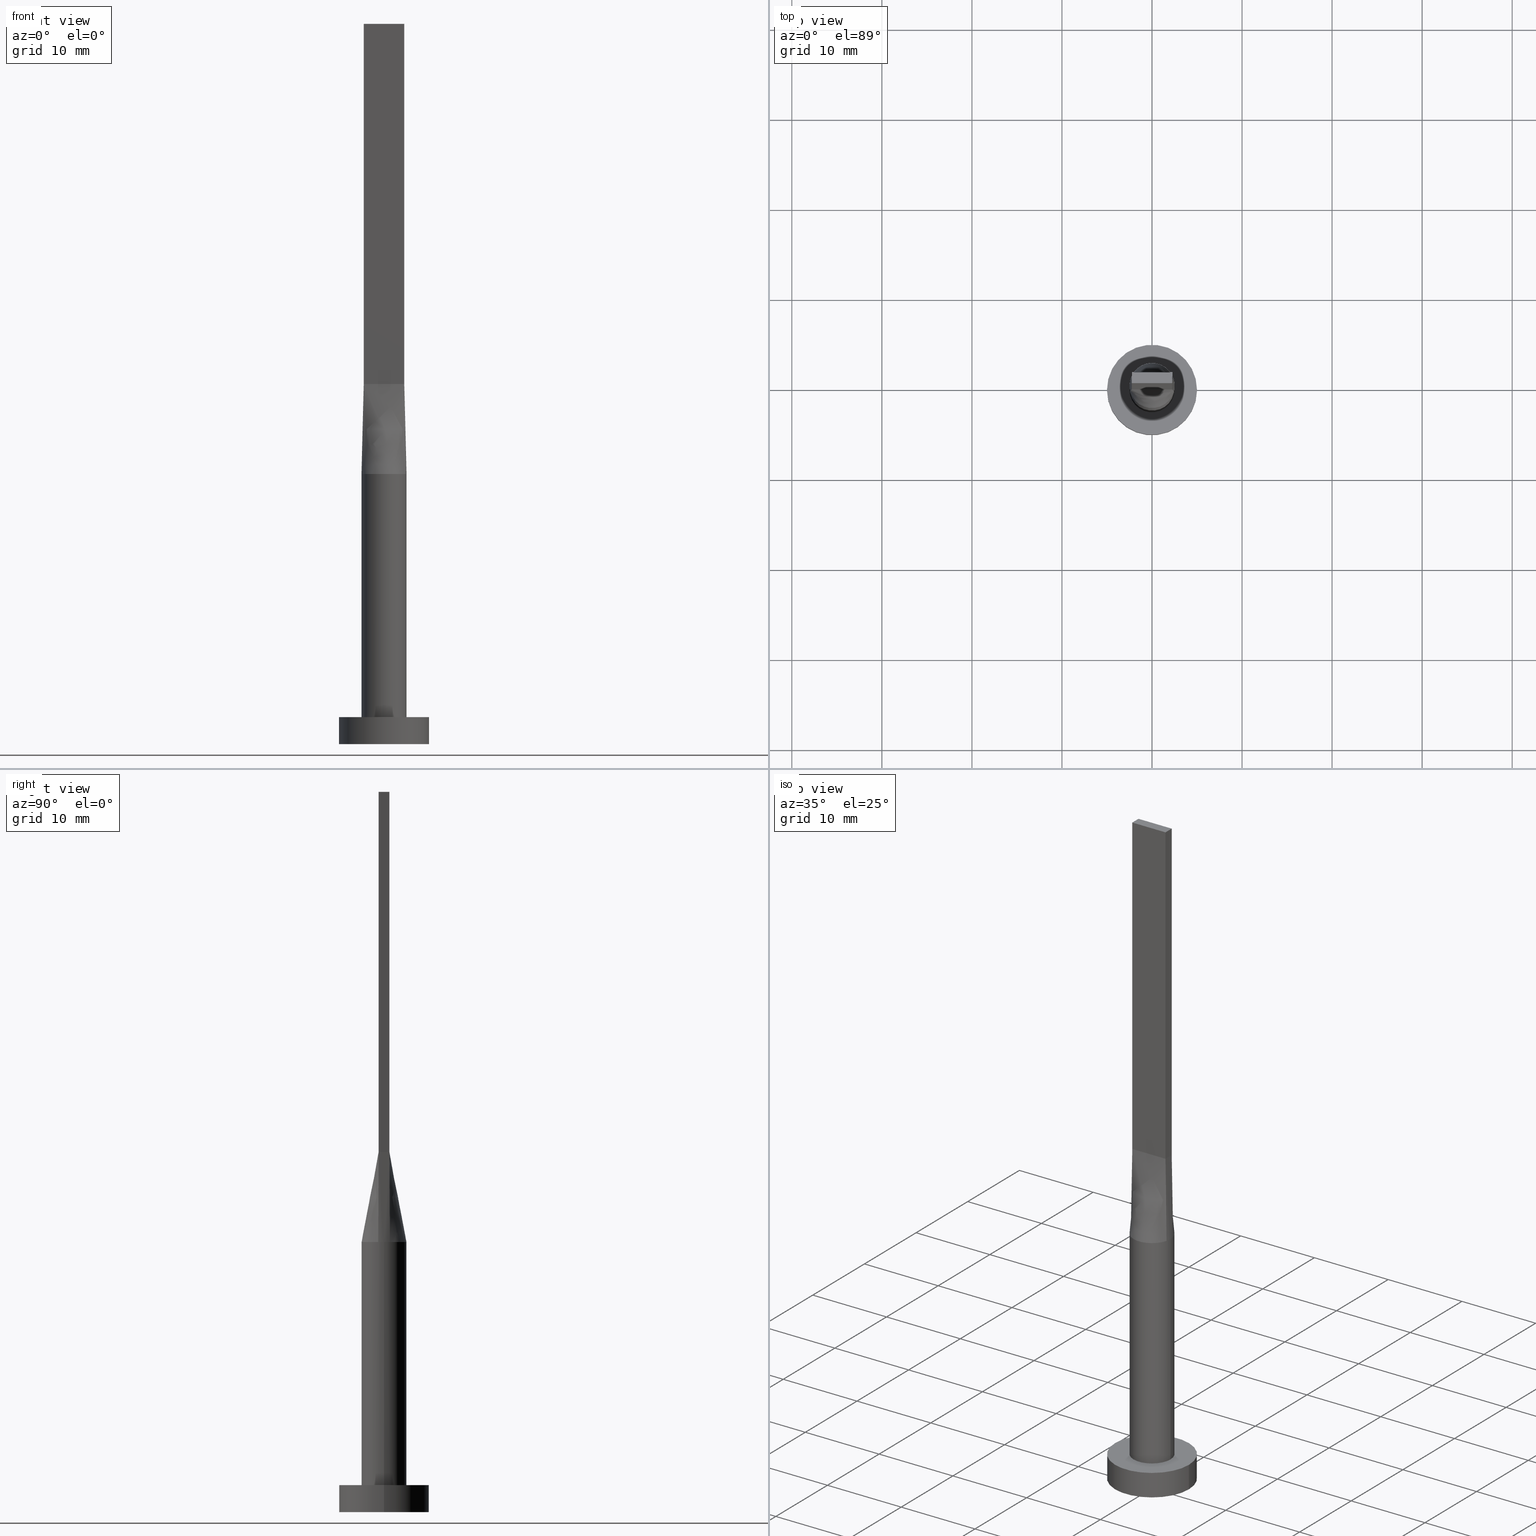
[diagram: canonical four-view strip — front | top / right | iso, engineering-drawing reading convention]
A machine part, canonical four-view strip (front | top / right | iso — engineering-drawing reading convention). The complete STEP part file that produces these views, byte-faithful:
ISO-10303-21;
HEADER;
FILE_DESCRIPTION (( 'STEP AP203' ),
    '1' );
FILE_NAME ('47bc.STEP',
    '2023-02-13T12:33:36',
    ( '' ),
    ( '' ),
    'SwSTEP 2.0',
    'SolidWorks 2019',
    '' );
FILE_SCHEMA (( 'CONFIG_CONTROL_DESIGN' ));
ENDSEC;

DATA;
#1 = CARTESIAN_POINT ( 'NONE',  ( 2.249999999999999556, 0.6000000000000001998, 80.00000000000000000 ) ) ;
#2 = CIRCLE ( 'NONE', #316, 5.000000000000000000 ) ;
#3 = PLANE ( 'NONE',  #278 ) ;
#4 = CARTESIAN_POINT ( 'NONE',  ( 2.249999999999999556, 0.6000000000000001998, 80.00000000000000000 ) ) ;
#5 = CARTESIAN_POINT ( 'NONE',  ( -2.249999999999999556, 0.6000000000000001998, 80.00000000000000000 ) ) ;
#6 = ORIENTED_EDGE ( 'NONE', *, *, #446, .F. ) ;
#7 =( NAMED_UNIT ( * ) PLANE_ANGLE_UNIT ( ) SI_UNIT ( $, .RADIAN. ) );
#8 = CARTESIAN_POINT ( 'NONE',  ( 2.415587349003115669, 0.6441566264008308229, 30.00000000000000000 ) ) ;
#9 = CARTESIAN_POINT ( 'NONE',  ( 2.250000000000000000, -0.5999999999999997558, 40.00000000000000000 ) ) ;
#10 = ORIENTED_EDGE ( 'NONE', *, *, #391, .T. ) ;
#11 = CARTESIAN_POINT ( 'NONE',  ( -1.312500000000006439, 0.6000000000000000888, 39.99999999999999289 ) ) ;
#12 = CARTESIAN_POINT ( 'NONE',  ( -2.250000000000000000, -0.5999999999999994227, 40.00000000000000000 ) ) ;
#13 = APPROVAL_ROLE ( '' ) ;
#14 = CARTESIAN_POINT ( 'NONE',  ( 0.6394215159088044720, -2.436483607037786214, 30.00000000000000711 ) ) ;
#15 = EDGE_CURVE ( 'NONE', #521, #509, #29, .T. ) ;
#16 = CARTESIAN_POINT ( 'NONE',  ( -5.000000000000000000, 0.000000000000000000, 3.000000000000000000 ) ) ;
#17 = DATE_AND_TIME ( #420, #285 ) ;
#18 = CARTESIAN_POINT ( 'NONE',  ( -2.249999999999999556, 0.3999999999999996891, 39.99999999999999289 ) ) ;
#19 = PRODUCT_RELATED_PRODUCT_CATEGORY ( 'detail', '', ( #579 ) ) ;
#20 = VECTOR ( 'NONE', #149, 1000.000000000000000 ) ;
#21 = LINE ( 'NONE', #458, #503 ) ;
#22 = ORIENTED_EDGE ( 'NONE', *, *, #57, .F. ) ;
#23 = CC_DESIGN_PERSON_AND_ORGANIZATION_ASSIGNMENT ( #181, #364, ( #579 ) ) ;
#24 = CIRCLE ( 'NONE', #231, 2.500000000000000000 ) ;
#25 = PLANE ( 'NONE',  #373 ) ;
#26 = EDGE_LOOP ( 'NONE', ( #10, #462, #154, #565 ) ) ;
#27 = DIRECTION ( 'NONE',  ( -3.614007241618348278E-16, 1.000000000000000000, -0.000000000000000000 ) ) ;
#28 = ORIENTED_EDGE ( 'NONE', *, *, #156, .F. ) ;
#29 = CIRCLE ( 'NONE', #512, 2.500000000000000000 ) ;
#30 = CARTESIAN_POINT ( 'NONE',  ( 0.000000000000000000, 0.000000000000000000, 3.000000000000000000 ) ) ;
#31 = EDGE_LOOP ( 'NONE', ( #289, #472, #326, #514 ) ) ;
#32 = CARTESIAN_POINT ( 'NONE',  ( 5.000000000000000000, 6.123233995736766282E-16, 3.000000000000000000 ) ) ;
#33 = EDGE_CURVE ( 'NONE', #465, #511, #89, .T. ) ;
#34 = EDGE_LOOP ( 'NONE', ( #130, #211, #286, #435 ) ) ;
#35 = CARTESIAN_POINT ( 'NONE',  ( -2.249999999999999556, 0.1999999999999995115, 39.99999999999999289 ) ) ;
#36 = ORIENTED_EDGE ( 'NONE', *, *, #198, .F. ) ;
#37 = CARTESIAN_POINT ( 'NONE',  ( -2.250000000000000000, -0.5999999999999994227, 80.00000000000000000 ) ) ;
#38 = ORIENTED_EDGE ( 'NONE', *, *, #39, .F. ) ;
#39 = EDGE_CURVE ( 'NONE', #128, #298, #567, .T. ) ;
#40 = DIRECTION ( 'NONE',  ( 0.000000000000000000, 0.000000000000000000, 1.000000000000000000 ) ) ;
#41 = ORIENTED_EDGE ( 'NONE', *, *, #198, .T. ) ;
#42 = AXIS2_PLACEMENT_3D ( 'NONE', #37, #118, #78 ) ;
#43 = CARTESIAN_POINT ( 'NONE',  ( -2.249999999999999556, 0.6000000000000001998, 40.00000000000000000 ) ) ;
#44 = CARTESIAN_POINT ( 'NONE',  ( -0.1875000000000003886, -0.5999999999999995337, 40.00000000000000000 ) ) ;
#45 = B_SPLINE_SURFACE_WITH_KNOTS ( 'NONE', 3, 1, ( 
 ( #8, #493 ),
 ( #581, #577 ),
 ( #319, #315 ),
 ( #188, #530 ),
 ( #98, #398 ),
 ( #498, #312 ),
 ( #362, #275 ),
 ( #90, #490 ),
 ( #268, #447 ),
 ( #453, #266 ),
 ( #175, #226 ),
 ( #53, #233 ),
 ( #401, #411 ),
 ( #541, #11 ),
 ( #351, #440 ),
 ( #182, #271 ),
 ( #443, #535 ),
 ( #354, #43 ) ),
 .UNSPECIFIED., .F., .F., .F.,
 ( 4, 2, 2, 2, 2, 2, 2, 2, 4 ),
 ( 2, 2 ),
 ( 0.000000000000000000, 0.1249999999999999445, 0.2499999999999998890, 0.3749999999999998335, 0.4999999999999997780, 0.6249999999999997780, 0.7499999999999997780, 0.8749999999999997780, 1.000000000000000000 ),
 ( 0.000000000000000000, 1.000000000000000000 ),
 .UNSPECIFIED. ) ;
#46 = CARTESIAN_POINT ( 'NONE',  ( -0.3750000000000003886, -0.5999999999999994227, 39.99999999999999289 ) ) ;
#47 = VECTOR ( 'NONE', #371, 1000.000000000000000 ) ;
#48 = PERSON_AND_ORGANIZATION ( #261, #250 ) ;
#49 = CARTESIAN_POINT ( 'NONE',  ( -2.499999999999999556, -1.638601646481158325E-16, 29.99999999999999289 ) ) ;
#50 = FACE_OUTER_BOUND ( 'NONE', #374, .T. ) ;
#51 = ADVANCED_FACE ( 'NONE', ( #302 ), #405, .T. ) ;
#52 = CARTESIAN_POINT ( 'NONE',  ( 2.250000000000000000, -0.5999999999999997558, 80.00000000000000000 ) ) ;
#53 = CARTESIAN_POINT ( 'NONE',  ( -1.212939335911090044, 2.207734225347456114, 30.00000000000000000 ) ) ;
#54 = CARTESIAN_POINT ( 'NONE',  ( 2.062500000000000000, -0.5999999999999997558, 39.99999999999999289 ) ) ;
#55 = DIRECTION ( 'NONE',  ( 0.000000000000000000, 0.000000000000000000, 1.000000000000000000 ) ) ;
#56 = PERSON_AND_ORGANIZATION ( #261, #250 ) ;
#57 = EDGE_CURVE ( 'NONE', #419, #396, #140, .T. ) ;
#58 = DIRECTION ( 'NONE',  ( 0.000000000000000000, 0.000000000000000000, 1.000000000000000000 ) ) ;
#59 = VERTEX_POINT ( 'NONE', #355 ) ;
#60 = APPLICATION_CONTEXT ( 'configuration controlled 3d designs of mechanical parts and assemblies' ) ;
#61 = APPROVAL_STATUS ( 'not_yet_approved' ) ;
#62 = CC_DESIGN_PERSON_AND_ORGANIZATION_ASSIGNMENT ( #287, #244, ( #193 ) ) ;
#63 = CARTESIAN_POINT ( 'NONE',  ( 0.000000000000000000, 0.000000000000000000, 0.000000000000000000 ) ) ;
#64 = DATE_TIME_ROLE ( 'creation_date' ) ;
#65 = LINE ( 'NONE', #290, #114 ) ;
#66 = EDGE_CURVE ( 'NONE', #465, #330, #144, .T. ) ;
#67 = ORIENTED_EDGE ( 'NONE', *, *, #258, .T. ) ;
#68 = DATE_AND_TIME ( #379, #249 ) ;
#69 = LINE ( 'NONE', #552, #439 ) ;
#70 = ORIENTED_EDGE ( 'NONE', *, *, #507, .F. ) ;
#71 = VECTOR ( 'NONE', #255, 1000.000000000000000 ) ;
#72 = CARTESIAN_POINT ( 'NONE',  ( -5.000000000000000000, 0.000000000000000000, 0.000000000000000000 ) ) ;
#73 = APPROVAL_PERSON_ORGANIZATION ( #413, #291, #13 ) ;
#74 = ORIENTED_EDGE ( 'NONE', *, *, #425, .F. ) ;
#75 = CARTESIAN_POINT ( 'NONE',  ( -2.499999999999999556, 0.2184061234416766750, 29.99999999999998934 ) ) ;
#76 = CARTESIAN_POINT ( 'NONE',  ( -2.250000000000000000, -0.5999999999999994227, 40.00000000000000000 ) ) ;
#77 = EDGE_CURVE ( 'NONE', #59, #298, #451, .T. ) ;
#78 = DIRECTION ( 'NONE',  ( -1.000000000000000000, 7.228014483236697048E-17, 0.000000000000000000 ) ) ;
#79 = ORIENTED_EDGE ( 'NONE', *, *, #180, .T. ) ;
#80 = CC_DESIGN_DATE_AND_TIME_ASSIGNMENT ( #68, #515, ( #193 ) ) ;
#81 = PLANE ( 'NONE',  #240 ) ;
#82 = APPROVAL_PERSON_ORGANIZATION ( #56, #150, #551 ) ;
#83 = CARTESIAN_POINT ( 'NONE',  ( -2.283437435282020811, -1.045786430836910474, 30.00000000000000000 ) ) ;
#84 = APPROVAL_DATE_TIME ( #17, #150 ) ;
#85 = DIRECTION ( 'NONE',  ( 1.000000000000000000, 0.000000000000000000, 0.000000000000000000 ) ) ;
#86 = EDGE_LOOP ( 'NONE', ( #441, #119 ) ) ;
#87 = ADVANCED_FACE ( 'NONE', ( #50 ), #121, .T. ) ;
#88 = CARTESIAN_POINT ( 'NONE',  ( -1.466504377161500727, 2.043814966248090226, 30.00000000000000000 ) ) ;
#89 = LINE ( 'NONE', #262, #272 ) ;
#90 = CARTESIAN_POINT ( 'NONE',  ( 0.6394215159088050271, 2.436483607037784882, 29.99999999999998579 ) ) ;
#91 = CARTESIAN_POINT ( 'NONE',  ( 0.9374999999999997780, -0.5999999999999996447, 39.99999999999999289 ) ) ;
#92 = DIRECTION ( 'NONE',  ( -3.614007241618348278E-16, 1.000000000000000000, 0.000000000000000000 ) ) ;
#93 = CARTESIAN_POINT ( 'NONE',  ( 2.470912383581261640, 0.4366877467327808238, 30.00000000000000355 ) ) ;
#94 = CALENDAR_DATE ( 2023, 13, 2 ) ;
#95 = DIRECTION ( 'NONE',  ( 0.000000000000000000, 0.000000000000000000, 1.000000000000000000 ) ) ;
#96 = CARTESIAN_POINT ( 'NONE',  ( 1.312499999999999778, -0.5999999999999997558, 39.99999999999999289 ) ) ;
#97 = APPROVAL_DATE_TIME ( #449, #291 ) ;
#98 = CARTESIAN_POINT ( 'NONE',  ( 1.880930080310023289, 1.670304384679167642, 29.99999999999999645 ) ) ;
#99 = CARTESIAN_POINT ( 'NONE',  ( 2.499999999999999112, 0.2184061234416761477, 29.99999999999998934 ) ) ;
#100 = VECTOR ( 'NONE', #141, 1000.000000000000114 ) ;
#101 = AXIS2_PLACEMENT_3D ( 'NONE', #288, #461, #427 ) ;
#102 = CARTESIAN_POINT ( 'NONE',  ( 2.500000000000000000, 3.061616997868383141E-16, 3.000000000000000000 ) ) ;
#103 = CARTESIAN_POINT ( 'NONE',  ( 2.249999999999999556, 0.4000000000000002998, 39.99999999999999289 ) ) ;
#104 = EDGE_CURVE ( 'NONE', #396, #237, #2, .T. ) ;
#105 = CARTESIAN_POINT ( 'NONE',  ( 2.250000000000000000, -0.5999999999999997558, 40.00000000000000000 ) ) ;
#106 = COORDINATED_UNIVERSAL_TIME_OFFSET ( 1, 0, .AHEAD. ) ;
#107 = DIRECTION ( 'NONE',  ( 0.000000000000000000, 0.000000000000000000, 1.000000000000000000 ) ) ;
#108 = ORIENTED_EDGE ( 'NONE', *, *, #104, .F. ) ;
#109 = CARTESIAN_POINT ( 'NONE',  ( -2.249999999999999556, 0.6000000000000001998, 40.00000000000000000 ) ) ;
#110 = ORIENTED_EDGE ( 'NONE', *, *, #162, .T. ) ;
#111 = CALENDAR_DATE ( 2023, 13, 2 ) ;
#112 = DIRECTION ( 'NONE',  ( 1.000000000000000000, 0.000000000000000000, -0.000000000000000000 ) ) ;
#113 = EDGE_LOOP ( 'NONE', ( #555, #547, #304, #481 ) ) ;
#114 = VECTOR ( 'NONE', #153, 1000.000000000000114 ) ;
#115 = CARTESIAN_POINT ( 'NONE',  ( -2.250000000000000000, -0.5999999999999994227, 80.00000000000000000 ) ) ;
#116 = EDGE_LOOP ( 'NONE', ( #252, #216, #74, #28, #483 ) ) ;
#117 = APPROVAL_PERSON_ORGANIZATION ( #556, #416, #332 ) ;
#118 = DIRECTION ( 'NONE',  ( 7.228014483236697048E-17, 1.000000000000000000, -0.000000000000000000 ) ) ;
#119 = ORIENTED_EDGE ( 'NONE', *, *, #242, .T. ) ;
#120 = EDGE_CURVE ( 'NONE', #160, #469, #415, .T. ) ;
#121 = B_SPLINE_SURFACE_WITH_KNOTS ( 'NONE', 3, 1, ( 
 ( #137, #186 ),
 ( #179, #317 ),
 ( #536, #495 ),
 ( #99, #500 ),
 ( #93, #103 ),
 ( #279, #456 ) ),
 .UNSPECIFIED., .F., .F., .F.,
 ( 4, 2, 4 ),
 ( 2, 2 ),
 ( 0.000000000000000000, 0.5000000000000000000, 1.000000000000000000 ),
 ( 0.000000000000000000, 1.000000000000000000 ),
 .UNSPECIFIED. ) ;
#122 = CARTESIAN_POINT ( 'NONE',  ( -0.6394215159088052491, 2.436483607037785326, 30.00000000000000355 ) ) ;
#123 = VERTEX_POINT ( 'NONE', #133 ) ;
#124 = CARTESIAN_POINT ( 'NONE',  ( 2.249999999999999556, 0.6000000000000001998, 40.00000000000000000 ) ) ;
#125 = ORIENTED_EDGE ( 'NONE', *, *, #169, .T. ) ;
#126 = EDGE_CURVE ( 'NONE', #511, #254, #267, .T. ) ;
#127 = PLANE ( 'NONE',  #42 ) ;
#128 = VERTEX_POINT ( 'NONE', #538 ) ;
#129 = CARTESIAN_POINT ( 'NONE',  ( -2.249999999999999556, 0.6000000000000001998, 40.00000000000000000 ) ) ;
#130 = ORIENTED_EDGE ( 'NONE', *, *, #156, .T. ) ;
#131 = FACE_OUTER_BOUND ( 'NONE', #340, .T. ) ;
#132 = MANIFOLD_SOLID_BREP ( 'P�idat vysunut�m5', #533 ) ;
#133 = CARTESIAN_POINT ( 'NONE',  ( 2.499999999999999556, 1.077931475469669239E-17, 29.99999999999999289 ) ) ;
#134 = CARTESIAN_POINT ( 'NONE',  ( 2.250000000000000000, -0.5999999999999997558, 80.00000000000000000 ) ) ;
#135 = CARTESIAN_POINT ( 'NONE',  ( 0.000000000000000000, 0.000000000000000000, 0.000000000000000000 ) ) ;
#136 = ORIENTED_EDGE ( 'NONE', *, *, #403, .F. ) ;
#137 = CARTESIAN_POINT ( 'NONE',  ( 2.415587349003115669, -0.6441566264008309339, 30.00000000000000000 ) ) ;
#138 = APPLICATION_PROTOCOL_DEFINITION ( 'international standard', 'config_control_design', 1994, #342 ) ;
#139 = FACE_OUTER_BOUND ( 'NONE', #404, .T. ) ;
#140 = LINE ( 'NONE', #408, #570 ) ;
#141 = DIRECTION ( 'NONE',  ( -0.01655630387018622654, -0.004415014365382924529, 0.9998531874481929593 ) ) ;
#142 = CARTESIAN_POINT ( 'NONE',  ( 0.000000000000000000, 0.000000000000000000, 0.000000000000000000 ) ) ;
#143 = EDGE_CURVE ( 'NONE', #511, #160, #227, .T. ) ;
#144 = LINE ( 'NONE', #1, #299 ) ;
#145 = AXIS2_PLACEMENT_3D ( 'NONE', #322, #459, #331 ) ;
#146 = VERTEX_POINT ( 'NONE', #247 ) ;
#147 = DIRECTION ( 'NONE',  ( 3.614007241618348278E-16, -1.000000000000000000, 0.000000000000000000 ) ) ;
#148 = VECTOR ( 'NONE', #323, 1000.000000000000000 ) ;
#149 = DIRECTION ( 'NONE',  ( -0.000000000000000000, -0.000000000000000000, -1.000000000000000000 ) ) ;
#150 = APPROVAL ( #238, 'NEUR�EN�' ) ;
#151 = CARTESIAN_POINT ( 'NONE',  ( 0.000000000000000000, 0.000000000000000000, 80.00000000000000000 ) ) ;
#152 = ORIENTED_EDGE ( 'NONE', *, *, #39, .T. ) ;
#153 = DIRECTION ( 'NONE',  ( 0.01655630387018622654, -0.004415014365382947080, 0.9998531874481929593 ) ) ;
#154 = ORIENTED_EDGE ( 'NONE', *, *, #553, .F. ) ;
#155 = COORDINATED_UNIVERSAL_TIME_OFFSET ( 1, 0, .AHEAD. ) ;
#156 = EDGE_CURVE ( 'NONE', #254, #59, #21, .T. ) ;
#157 = CARTESIAN_POINT ( 'NONE',  ( 0.000000000000000000, 0.000000000000000000, 30.00000000000000000 ) ) ;
#158 = DESIGN_CONTEXT ( 'detailed design', #60, 'design' ) ;
#159 = CARTESIAN_POINT ( 'NONE',  ( 0.000000000000000000, 0.000000000000000000, 3.000000000000000000 ) ) ;
#160 = VERTEX_POINT ( 'NONE', #115 ) ;
#161 = DIRECTION ( 'NONE',  ( -1.000000000000000000, 0.000000000000000000, 0.000000000000000000 ) ) ;
#162 = EDGE_CURVE ( 'NONE', #146, #237, #292, .T. ) ;
#163 = VERTEX_POINT ( 'NONE', #195 ) ;
#164 = CIRCLE ( 'NONE', #452, 2.500000000000000000 ) ;
#165 = FACE_OUTER_BOUND ( 'NONE', #86, .T. ) ;
#166 = ORIENTED_EDGE ( 'NONE', *, *, #347, .F. ) ;
#167 = CARTESIAN_POINT ( 'NONE',  ( -2.249999999999999556, -0.2000000000000003719, 39.99999999999999289 ) ) ;
#168 = CARTESIAN_POINT ( 'NONE',  ( -2.415587349003116113, -0.6441566264008301568, 30.00000000000000000 ) ) ;
#169 = EDGE_CURVE ( 'NONE', #246, #254, #65, .T. ) ;
#170 = CARTESIAN_POINT ( 'NONE',  ( 2.283437435282019923, 1.045786430836911585, 30.00000000000000711 ) ) ;
#171 = DIRECTION ( 'NONE',  ( -1.000000000000000000, 0.000000000000000000, 0.000000000000000000 ) ) ;
#172 = AXIS2_PLACEMENT_3D ( 'NONE', #30, #210, #305 ) ;
#173 = CARTESIAN_POINT ( 'NONE',  ( 2.042400361660745567, 1.461628045180436430, 29.99999999999999289 ) ) ;
#174 = ORIENTED_EDGE ( 'NONE', *, *, #162, .F. ) ;
#175 = CARTESIAN_POINT ( 'NONE',  ( -0.6394215159088052491, 2.436483607037785326, 30.00000000000000355 ) ) ;
#176 = CARTESIAN_POINT ( 'NONE',  ( -2.363720129086103405, -0.8386587010896268124, 30.00000000000000355 ) ) ;
#177 = CYLINDRICAL_SURFACE ( 'NONE', #558, 2.500000000000000000 ) ;
#178 = VECTOR ( 'NONE', #377, 1000.000000000000000 ) ;
#179 = CARTESIAN_POINT ( 'NONE',  ( 2.470912383581262528, -0.4366877467327812123, 30.00000000000000355 ) ) ;
#180 = EDGE_CURVE ( 'NONE', #160, #59, #426, .T. ) ;
#181 = PERSON_AND_ORGANIZATION ( #261, #250 ) ;
#182 = CARTESIAN_POINT ( 'NONE',  ( -2.283437435282019923, 1.045786430836911141, 30.00000000000000355 ) ) ;
#183 = CARTESIAN_POINT ( 'NONE',  ( 0.1874999999999995837, -0.5999999999999996447, 39.99999999999999289 ) ) ;
#184 = ORIENTED_EDGE ( 'NONE', *, *, #347, .T. ) ;
#185 = CARTESIAN_POINT ( 'NONE',  ( -2.363720129086103849, 0.8386587010896275896, 30.00000000000001066 ) ) ;
#186 = CARTESIAN_POINT ( 'NONE',  ( 2.250000000000000000, -0.5999999999999997558, 40.00000000000000000 ) ) ;
#187 = CC_DESIGN_PERSON_AND_ORGANIZATION_ASSIGNMENT ( #48, #228, ( #494 ) ) ;
#188 = CARTESIAN_POINT ( 'NONE',  ( 2.042400361660745567, 1.461628045180436430, 29.99999999999999289 ) ) ;
#189 = CARTESIAN_POINT ( 'NONE',  ( -0.9375000000000004441, -0.5999999999999994227, 39.99999999999999289 ) ) ;
#190 = CARTESIAN_POINT ( 'NONE',  ( 2.332793674501557390, 0.6220783132004152893, 35.00000000000000000 ) ) ;
#191 = LINE ( 'NONE', #370, #148 ) ;
#192 = B_SPLINE_CURVE_WITH_KNOTS ( 'NONE', 3,
 ( #569, #430, #170, #173, #563, #480, #518, #437, #392, #348, #122, #482, #88, #206, #380, #473, #185, #450 ),
 .UNSPECIFIED., .F., .F.,
 ( 4, 2, 2, 2, 2, 2, 2, 2, 4 ),
 ( 0.000000000000000000, 0.1249999999999999445, 0.2499999999999998890, 0.3749999999999998335, 0.4999999999999997780, 0.6249999999999997780, 0.7499999999999997780, 0.8749999999999997780, 1.000000000000000000 ),
 .UNSPECIFIED. ) ;
#193 = SECURITY_CLASSIFICATION ( '', '', #502 ) ;
#194 = PERSON_AND_ORGANIZATION ( #261, #250 ) ;
#195 = CARTESIAN_POINT ( 'NONE',  ( -2.415759998437587708, -0.6442033382925431706, 30.00000000000000000 ) ) ;
#196 = DIRECTION ( 'NONE',  ( 0.000000000000000000, 0.000000000000000000, 1.000000000000000000 ) ) ;
#197 = ORIENTED_EDGE ( 'NONE', *, *, #248, .F. ) ;
#198 = EDGE_CURVE ( 'NONE', #505, #521, #69, .T. ) ;
#199 = FACE_OUTER_BOUND ( 'NONE', #31, .T. ) ;
#200 = AXIS2_PLACEMENT_3D ( 'NONE', #159, #423, #281 ) ;
#201 = AXIS2_PLACEMENT_3D ( 'NONE', #339, #524, #161 ) ;
#202 = CARTESIAN_POINT ( 'NONE',  ( -2.250000000000000000, -0.5999999999999994227, 80.00000000000000000 ) ) ;
#203 = ORIENTED_EDGE ( 'NONE', *, *, #375, .F. ) ;
#204 = PERSON_AND_ORGANIZATION_ROLE ( 'creator' ) ;
#205 = ADVANCED_FACE ( 'NONE', ( #199 ), #25, .F. ) ;
#206 = CARTESIAN_POINT ( 'NONE',  ( -1.880930080310023733, 1.670304384679167420, 30.00000000000000000 ) ) ;
#207 = EDGE_LOOP ( 'NONE', ( #22, #70, #110, #184 ) ) ;
#208 = FACE_OUTER_BOUND ( 'NONE', #457, .T. ) ;
#209 = ORIENTED_EDGE ( 'NONE', *, *, #540, .F. ) ;
#210 = DIRECTION ( 'NONE',  ( -0.000000000000000000, -0.000000000000000000, -1.000000000000000000 ) ) ;
#211 = ORIENTED_EDGE ( 'NONE', *, *, #180, .F. ) ;
#212 = LINE ( 'NONE', #477, #320 ) ;
#213 = DIRECTION ( 'NONE',  ( 1.000000000000000000, 0.000000000000000000, 0.000000000000000000 ) ) ;
#214 = CC_DESIGN_PERSON_AND_ORGANIZATION_ASSIGNMENT ( #194, #204, ( #479 ) ) ;
#215 = CARTESIAN_POINT ( 'NONE',  ( 0.000000000000000000, 0.000000000000000000, 30.00000000000000000 ) ) ;
#216 = ORIENTED_EDGE ( 'NONE', *, *, #300, .T. ) ;
#217 = PRODUCT_DEFINITION_SHAPE ( 'NONE', 'NONE',  #494 ) ;
#218 =( GEOMETRIC_REPRESENTATION_CONTEXT ( 3 ) GLOBAL_UNCERTAINTY_ASSIGNED_CONTEXT ( ( #361 ) ) GLOBAL_UNIT_ASSIGNED_CONTEXT ( ( #496, #7, #222 ) ) REPRESENTATION_CONTEXT ( 'NONE', 'WORKASPACE' ) );
#219 = DIRECTION ( 'NONE',  ( 1.000000000000000000, 0.000000000000000000, -0.000000000000000000 ) ) ;
#220 = VERTEX_POINT ( 'NONE', #501 ) ;
#221 = CIRCLE ( 'NONE', #485, 5.000000000000000000 ) ;
#222 =( NAMED_UNIT ( * ) SI_UNIT ( $, .STERADIAN. ) SOLID_ANGLE_UNIT ( ) );
#223 = CARTESIAN_POINT ( 'NONE',  ( 0.000000000000000000, 0.000000000000000000, 3.000000000000000000 ) ) ;
#224 = CARTESIAN_POINT ( 'NONE',  ( 1.500000000000000000, -0.5999999999999997558, 39.99999999999999289 ) ) ;
#225 = DIRECTION ( 'NONE',  ( 0.000000000000000000, 0.000000000000000000, 1.000000000000000000 ) ) ;
#226 = CARTESIAN_POINT ( 'NONE',  ( -0.3750000000000103251, 0.6000000000000000888, 39.99999999999999289 ) ) ;
#227 = LINE ( 'NONE', #5, #178 ) ;
#228 = PERSON_AND_ORGANIZATION_ROLE ( 'creator' ) ;
#229 = CARTESIAN_POINT ( 'NONE',  ( -2.249999999999999556, 0.6000000000000001998, 80.00000000000000000 ) ) ;
#230 = CARTESIAN_POINT ( 'NONE',  ( 2.283437435282019479, -1.045786430836911363, 30.00000000000001066 ) ) ;
#231 = AXIS2_PLACEMENT_3D ( 'NONE', #434, #386, #85 ) ;
#232 = DIRECTION ( 'NONE',  ( 1.000000000000000000, -3.614007241618349264E-16, 0.000000000000000000 ) ) ;
#233 = CARTESIAN_POINT ( 'NONE',  ( -0.7500000000000088818, 0.6000000000000000888, 39.99999999999999289 ) ) ;
#234 = CARTESIAN_POINT ( 'NONE',  ( 2.363720129086102961, -0.8386587010896274785, 30.00000000000000355 ) ) ;
#235 = ORIENTED_EDGE ( 'NONE', *, *, #307, .F. ) ;
#236 = DIRECTION ( 'NONE',  ( 1.000000000000000000, 0.000000000000000000, 0.000000000000000000 ) ) ;
#237 = VERTEX_POINT ( 'NONE', #72 ) ;
#238 = APPROVAL_STATUS ( 'not_yet_approved' ) ;
#239 = DIRECTION ( 'NONE',  ( 1.000000000000000000, 0.000000000000000000, 0.000000000000000000 ) ) ;
#240 = AXIS2_PLACEMENT_3D ( 'NONE', #260, #343, #336 ) ;
#241 = COORDINATED_UNIVERSAL_TIME_OFFSET ( 1, 0, .AHEAD. ) ;
#242 = EDGE_CURVE ( 'NONE', #419, #146, #341, .T. ) ;
#243 = DIRECTION ( 'NONE',  ( 0.000000000000000000, -0.000000000000000000, -1.000000000000000000 ) ) ;
#244 = PERSON_AND_ORGANIZATION_ROLE ( 'classification_officer' ) ;
#245 = CARTESIAN_POINT ( 'NONE',  ( 2.249999999999999556, 0.6000000000000001998, 40.00000000000000000 ) ) ;
#246 = VERTEX_POINT ( 'NONE', #284 ) ;
#247 = CARTESIAN_POINT ( 'NONE',  ( -5.000000000000000000, 0.000000000000000000, 3.000000000000000000 ) ) ;
#248 = EDGE_CURVE ( 'NONE', #128, #123, #527, .T. ) ;
#249 = LOCAL_TIME ( 13, 33, 36.00000000000000000, #241 ) ;
#250 = ORGANIZATION ( 'NEUR�EN�', 'NEUR�EN�', '' ) ;
#251 = DIRECTION ( 'NONE',  ( -0.000000000000000000, -0.000000000000000000, -1.000000000000000000 ) ) ;
#252 = ORIENTED_EDGE ( 'NONE', *, *, #559, .T. ) ;
#253 = CYLINDRICAL_SURFACE ( 'NONE', #172, 5.000000000000000000 ) ;
#254 = VERTEX_POINT ( 'NONE', #109 ) ;
#255 = DIRECTION ( 'NONE',  ( -1.000000000000000000, -0.000000000000000000, -0.000000000000000000 ) ) ;
#256 = ORIENTED_EDGE ( 'NONE', *, *, #338, .F. ) ;
#257 = CARTESIAN_POINT ( 'NONE',  ( -2.250000000000000000, -0.5999999999999995337, 40.00000000000000000 ) ) ;
#258 = EDGE_CURVE ( 'NONE', #509, #521, #526, .T. ) ;
#259 = ORIENTED_EDGE ( 'NONE', *, *, #104, .T. ) ;
#260 = CARTESIAN_POINT ( 'NONE',  ( 0.000000000000000000, 0.000000000000000000, 3.000000000000000000 ) ) ;
#261 = PERSON ( 'NEUR�EN�', 'NEUR�EN�', 'NEUR�EN�', ('NEUR�EN�'), ('NEUR�EN�'), ('NEUR�EN�') ) ;
#262 = CARTESIAN_POINT ( 'NONE',  ( 2.249999999999999556, 0.6000000000000001998, 80.00000000000000000 ) ) ;
#263 = SHAPE_DEFINITION_REPRESENTATION ( #217, #522 ) ;
#264 = LINE ( 'NONE', #124, #334 ) ;
#265 = ORIENTED_EDGE ( 'NONE', *, *, #328, .F. ) ;
#266 = CARTESIAN_POINT ( 'NONE',  ( -0.1875000000000109079, 0.6000000000000000888, 39.99999999999999289 ) ) ;
#267 = LINE ( 'NONE', #487, #474 ) ;
#268 = CARTESIAN_POINT ( 'NONE',  ( 0.3201159637850002349, 2.500000000000000888, 30.00000000000000355 ) ) ;
#269 = CARTESIAN_POINT ( 'NONE',  ( 1.875000000000000000, -0.5999999999999997558, 39.99999999999999289 ) ) ;
#270 = DIRECTION ( 'NONE',  ( 3.614007241618349264E-16, 1.000000000000000000, 0.000000000000000000 ) ) ;
#271 = CARTESIAN_POINT ( 'NONE',  ( -1.875000000000002442, 0.6000000000000000888, 39.99999999999999289 ) ) ;
#272 = VECTOR ( 'NONE', #171, 1000.000000000000000 ) ;
#273 = CARTESIAN_POINT ( 'NONE',  ( -0.7500000000000004441, -0.5999999999999994227, 39.99999999999999289 ) ) ;
#274 = LINE ( 'NONE', #190, #100 ) ;
#275 = CARTESIAN_POINT ( 'NONE',  ( 0.7499999999999901190, 0.6000000000000000888, 39.99999999999999289 ) ) ;
#276 = AXIS2_PLACEMENT_3D ( 'NONE', #151, #196, #112 ) ;
#277 = CARTESIAN_POINT ( 'NONE',  ( -1.466504377161501171, -2.043814966248090226, 30.00000000000000000 ) ) ;
#278 = AXIS2_PLACEMENT_3D ( 'NONE', #548, #309, #147 ) ;
#279 = CARTESIAN_POINT ( 'NONE',  ( 2.415587349003115669, 0.6441566264008304898, 30.00000000000000000 ) ) ;
#280 = CARTESIAN_POINT ( 'NONE',  ( 0.000000000000000000, 0.000000000000000000, 30.00000000000000000 ) ) ;
#281 = DIRECTION ( 'NONE',  ( 1.000000000000000000, 0.000000000000000000, 0.000000000000000000 ) ) ;
#282 = EDGE_LOOP ( 'NONE', ( #422, #424 ) ) ;
#283 = ADVANCED_FACE ( 'NONE', ( #372 ), #513, .T. ) ;
#284 = CARTESIAN_POINT ( 'NONE',  ( -2.415775789045403688, 0.6442075170323000588, 30.00000000000000000 ) ) ;
#285 = LOCAL_TIME ( 13, 33, 36.00000000000000000, #106 ) ;
#286 = ORIENTED_EDGE ( 'NONE', *, *, #143, .F. ) ;
#287 = PERSON_AND_ORGANIZATION ( #261, #250 ) ;
#288 = CARTESIAN_POINT ( 'NONE',  ( 0.000000000000000000, 0.000000000000000000, 30.00000000000000000 ) ) ;
#289 = ORIENTED_EDGE ( 'NONE', *, *, #403, .T. ) ;
#290 = CARTESIAN_POINT ( 'NONE',  ( -2.332793674501557390, 0.6220783132004154004, 35.00000000000000000 ) ) ;
#291 = APPROVAL ( #486, 'NEUR�EN�' ) ;
#292 = LINE ( 'NONE', #16, #47 ) ;
#293 = LOCAL_TIME ( 13, 33, 36.00000000000000000, #406 ) ;
#294 = CC_DESIGN_APPROVAL ( #291, ( #494 ) ) ;
#295 = DIRECTION ( 'NONE',  ( -0.000000000000000000, -0.000000000000000000, -1.000000000000000000 ) ) ;
#296 = ORIENTED_EDGE ( 'NONE', *, *, #15, .T. ) ;
#297 = CARTESIAN_POINT ( 'NONE',  ( -2.499999999999999112, -0.2184061234416761199, 29.99999999999998934 ) ) ;
#298 = VERTEX_POINT ( 'NONE', #105 ) ;
#299 = VECTOR ( 'NONE', #313, 1000.000000000000000 ) ;
#300 = EDGE_CURVE ( 'NONE', #505, #163, #164, .T. ) ;
#301 = LINE ( 'NONE', #129, #71 ) ;
#302 = FACE_OUTER_BOUND ( 'NONE', #428, .T. ) ;
#303 = CYLINDRICAL_SURFACE ( 'NONE', #368, 2.500000000000000000 ) ;
#304 = ORIENTED_EDGE ( 'NONE', *, *, #120, .T. ) ;
#305 = DIRECTION ( 'NONE',  ( -1.000000000000000000, 0.000000000000000000, 0.000000000000000000 ) ) ;
#306 = DIRECTION ( 'NONE',  ( 0.000000000000000000, 0.000000000000000000, 1.000000000000000000 ) ) ;
#307 = EDGE_CURVE ( 'NONE', #469, #298, #508, .T. ) ;
#308 = CARTESIAN_POINT ( 'NONE',  ( -1.312500000000000222, -0.5999999999999994227, 39.99999999999999289 ) ) ;
#309 = DIRECTION ( 'NONE',  ( -1.000000000000000000, -3.614007241618348278E-16, 0.000000000000000000 ) ) ;
#310 = DIRECTION ( 'NONE',  ( 1.000000000000000000, -7.228014483236697048E-17, 0.000000000000000000 ) ) ;
#311 = FACE_OUTER_BOUND ( 'NONE', #26, .T. ) ;
#312 = CARTESIAN_POINT ( 'NONE',  ( 0.9374999999999907851, 0.6000000000000000888, 39.99999999999999289 ) ) ;
#313 = DIRECTION ( 'NONE',  ( -0.000000000000000000, -0.000000000000000000, -1.000000000000000000 ) ) ;
#314 = DATE_AND_TIME ( #360, #293 ) ;
#315 = CARTESIAN_POINT ( 'NONE',  ( 1.874999999999996003, 0.6000000000000001998, 40.00000000000000000 ) ) ;
#316 = AXIS2_PLACEMENT_3D ( 'NONE', #135, #55, #236 ) ;
#317 = CARTESIAN_POINT ( 'NONE',  ( 2.250000000000000000, -0.3999999999999996336, 39.99999999999999289 ) ) ;
#318 = PLANE ( 'NONE',  #564 ) ;
#319 = CARTESIAN_POINT ( 'NONE',  ( 2.283437435282019923, 1.045786430836911585, 30.00000000000000711 ) ) ;
#320 = VECTOR ( 'NONE', #566, 1000.000000000000114 ) ;
#321 = CARTESIAN_POINT ( 'NONE',  ( 2.042400361660746899, -1.461628045180436652, 30.00000000000000355 ) ) ;
#322 = CARTESIAN_POINT ( 'NONE',  ( 0.000000000000000000, 0.000000000000000000, 3.000000000000000000 ) ) ;
#323 = DIRECTION ( 'NONE',  ( -0.000000000000000000, -0.000000000000000000, -1.000000000000000000 ) ) ;
#324 = CC_DESIGN_PERSON_AND_ORGANIZATION_ASSIGNMENT ( #463, #506, ( #479 ) ) ;
#325 = DIRECTION ( 'NONE',  ( 1.000000000000000000, 3.552713678800500929E-15, 0.000000000000000000 ) ) ;
#326 = ORIENTED_EDGE ( 'NONE', *, *, #33, .F. ) ;
#327 = APPROVAL_DATE_TIME ( #466, #416 ) ;
#328 = EDGE_CURVE ( 'NONE', #163, #128, #454, .T. ) ;
#329 = CARTESIAN_POINT ( 'NONE',  ( -2.249999999999999556, 0.6000000000000001998, 40.00000000000000000 ) ) ;
#330 = VERTEX_POINT ( 'NONE', #245 ) ;
#331 = DIRECTION ( 'NONE',  ( 1.000000000000000000, 0.000000000000000000, 0.000000000000000000 ) ) ;
#332 = APPROVAL_ROLE ( '' ) ;
#333 = FACE_OUTER_BOUND ( 'NONE', #387, .T. ) ;
#334 = VECTOR ( 'NONE', #27, 1000.000000000000000 ) ;
#335 = CC_DESIGN_APPROVAL ( #416, ( #479 ) ) ;
#336 = DIRECTION ( 'NONE',  ( 1.000000000000000000, 0.000000000000000000, -0.000000000000000000 ) ) ;
#337 = ORIENTED_EDGE ( 'NONE', *, *, #120, .F. ) ;
#338 = EDGE_CURVE ( 'NONE', #123, #509, #191, .T. ) ;
#339 = CARTESIAN_POINT ( 'NONE',  ( 0.000000000000000000, 0.000000000000000000, 3.000000000000000000 ) ) ;
#340 = EDGE_LOOP ( 'NONE', ( #460, #125, #136, #209 ) ) ;
#341 = CIRCLE ( 'NONE', #200, 5.000000000000000000 ) ;
#342 = APPLICATION_CONTEXT ( 'configuration controlled 3d designs of mechanical parts and assemblies' ) ;
#343 = DIRECTION ( 'NONE',  ( 0.000000000000000000, 0.000000000000000000, 1.000000000000000000 ) ) ;
#344 = CARTESIAN_POINT ( 'NONE',  ( -1.500000000000000000, -0.5999999999999994227, 39.99999999999999289 ) ) ;
#345 = CIRCLE ( 'NONE', #468, 5.000000000000000000 ) ;
#346 = CC_DESIGN_APPROVAL ( #150, ( #193 ) ) ;
#347 = EDGE_CURVE ( 'NONE', #237, #396, #221, .T. ) ;
#348 = CARTESIAN_POINT ( 'NONE',  ( -0.3201159637850009010, 2.500000000000000444, 30.00000000000001066 ) ) ;
#349 = AXIS2_PLACEMENT_3D ( 'NONE', #400, #539, #445 ) ;
#350 = ORIENTED_EDGE ( 'NONE', *, *, #328, .T. ) ;
#351 = CARTESIAN_POINT ( 'NONE',  ( -2.042400361660746899, 1.461628045180436430, 30.00000000000000355 ) ) ;
#352 = CARTESIAN_POINT ( 'NONE',  ( 1.466504377161500727, -2.043814966248090226, 29.99999999999999645 ) ) ;
#353 = VECTOR ( 'NONE', #542, 1000.000000000000000 ) ;
#354 = CARTESIAN_POINT ( 'NONE',  ( -2.415587349003115669, 0.6441566264008307119, 30.00000000000000000 ) ) ;
#355 = CARTESIAN_POINT ( 'NONE',  ( -2.250000000000000000, -0.5999999999999994227, 40.00000000000000000 ) ) ;
#356 = APPLICATION_PROTOCOL_DEFINITION ( 'international standard', 'config_control_design', 1994, #60 ) ;
#357 = CARTESIAN_POINT ( 'NONE',  ( 1.212939335911089378, -2.207734225347456558, 29.99999999999999645 ) ) ;
#358 = ORIENTED_EDGE ( 'NONE', *, *, #425, .T. ) ;
#359 = ADVANCED_FACE ( 'NONE', ( #417 ), #388, .T. ) ;
#360 = CALENDAR_DATE ( 2023, 13, 2 ) ;
#361 = UNCERTAINTY_MEASURE_WITH_UNIT (LENGTH_MEASURE( 1.000000000000000082E-05 ), #496, 'distance_accuracy_value', 'NONE');
#362 = CARTESIAN_POINT ( 'NONE',  ( 1.212939335911088934, 2.207734225347457002, 29.99999999999999289 ) ) ;
#363 = CARTESIAN_POINT ( 'NONE',  ( 1.880930080310023511, -1.670304384679167864, 30.00000000000000000 ) ) ;
#364 = PERSON_AND_ORGANIZATION_ROLE ( 'design_owner' ) ;
#365 = DIRECTION ( 'NONE',  ( 1.000000000000000000, 0.000000000000000000, 0.000000000000000000 ) ) ;
#366 = CARTESIAN_POINT ( 'NONE',  ( -0.3201159637850009565, -2.499999999999999112, 29.99999999999999645 ) ) ;
#367 = LINE ( 'NONE', #52, #442 ) ;
#368 = AXIS2_PLACEMENT_3D ( 'NONE', #215, #295, #432 ) ;
#369 = ADVANCED_FACE ( 'NONE', ( #208 ), #520, .T. ) ;
#370 = CARTESIAN_POINT ( 'NONE',  ( 2.500000000000000000, 3.061616997868383141E-16, 30.00000000000000000 ) ) ;
#371 = DIRECTION ( 'NONE',  ( -0.000000000000000000, -0.000000000000000000, -1.000000000000000000 ) ) ;
#372 = FACE_OUTER_BOUND ( 'NONE', #113, .T. ) ;
#373 = AXIS2_PLACEMENT_3D ( 'NONE', #510, #376, #243 ) ;
#374 = EDGE_LOOP ( 'NONE', ( #431, #488, #519, #378, #38 ) ) ;
#375 = EDGE_CURVE ( 'NONE', #123, #220, #24, .T. ) ;
#376 = DIRECTION ( 'NONE',  ( 0.000000000000000000, -1.000000000000000000, 0.000000000000000000 ) ) ;
#377 = DIRECTION ( 'NONE',  ( -3.614007241618349264E-16, -1.000000000000000000, 0.000000000000000000 ) ) ;
#378 = ORIENTED_EDGE ( 'NONE', *, *, #391, .F. ) ;
#379 = CALENDAR_DATE ( 2023, 13, 2 ) ;
#380 = CARTESIAN_POINT ( 'NONE',  ( -2.042400361660746899, 1.461628045180436430, 30.00000000000000355 ) ) ;
#381 = VECTOR ( 'NONE', #475, 1000.000000000000114 ) ;
#382 = CARTESIAN_POINT ( 'NONE',  ( -2.415587349003116113, -0.6441566264008302678, 30.00000000000000000 ) ) ;
#383 = ADVANCED_FACE ( 'NONE', ( #561 ), #127, .F. ) ;
#384 = ORIENTED_EDGE ( 'NONE', *, *, #57, .T. ) ;
#385 = LOCAL_TIME ( 13, 33, 36.00000000000000000, #155 ) ;
#386 = DIRECTION ( 'NONE',  ( 0.000000000000000000, 0.000000000000000000, 1.000000000000000000 ) ) ;
#387 = EDGE_LOOP ( 'NONE', ( #256, #197, #265, #573, #41, #296 ) ) ;
#388 = B_SPLINE_SURFACE_WITH_KNOTS ( 'NONE', 3, 1, ( 
 ( #421, #329 ),
 ( #504, #18 ),
 ( #75, #35 ),
 ( #297, #167 ),
 ( #528, #471 ),
 ( #382, #257 ) ),
 .UNSPECIFIED., .F., .F., .F.,
 ( 4, 2, 4 ),
 ( 2, 2 ),
 ( 0.000000000000000000, 0.5000000000000000000, 1.000000000000000000 ),
 ( 0.000000000000000000, 1.000000000000000000 ),
 .UNSPECIFIED. ) ;
#389 = FACE_BOUND ( 'NONE', #282, .T. ) ;
#390 = CARTESIAN_POINT ( 'NONE',  ( -1.874999999999999778, -0.5999999999999994227, 39.99999999999999289 ) ) ;
#391 = EDGE_CURVE ( 'NONE', #298, #330, #264, .T. ) ;
#392 = CARTESIAN_POINT ( 'NONE',  ( 0.3201159637850002349, 2.500000000000000888, 30.00000000000000355 ) ) ;
#393 = EDGE_LOOP ( 'NONE', ( #562, #235, #337, #79 ) ) ;
#394 = FACE_OUTER_BOUND ( 'NONE', #34, .T. ) ;
#395 = AXIS2_PLACEMENT_3D ( 'NONE', #142, #40, #219 ) ;
#396 = VERTEX_POINT ( 'NONE', #572 ) ;
#397 = MECHANICAL_CONTEXT ( 'NONE', #342, 'mechanical' ) ;
#398 = CARTESIAN_POINT ( 'NONE',  ( 1.312499999999992450, 0.6000000000000000888, 39.99999999999999289 ) ) ;
#399 = CARTESIAN_POINT ( 'NONE',  ( 2.415587349003115669, -0.6441566264008303788, 30.00000000000000000 ) ) ;
#400 = CARTESIAN_POINT ( 'NONE',  ( 0.000000000000000000, 0.000000000000000000, 0.000000000000000000 ) ) ;
#401 = CARTESIAN_POINT ( 'NONE',  ( -1.466504377161500727, 2.043814966248090226, 30.00000000000000000 ) ) ;
#402 = CARTESIAN_POINT ( 'NONE',  ( -0.6394215159088060263, -2.436483607037785326, 29.99999999999999289 ) ) ;
#403 = EDGE_CURVE ( 'NONE', #330, #254, #301, .T. ) ;
#404 = EDGE_LOOP ( 'NONE', ( #166, #108 ) ) ;
#405 = B_SPLINE_SURFACE_WITH_KNOTS ( 'NONE', 3, 1, ( 
 ( #168, #76 ),
 ( #176, #478 ),
 ( #83, #390 ),
 ( #571, #344 ),
 ( #546, #308 ),
 ( #277, #189 ),
 ( #444, #273 ),
 ( #402, #46 ),
 ( #366, #44 ),
 ( #484, #183 ),
 ( #14, #455 ),
 ( #357, #412 ),
 ( #352, #91 ),
 ( #363, #96 ),
 ( #321, #224 ),
 ( #230, #269 ),
 ( #234, #54 ),
 ( #399, #9 ) ),
 .UNSPECIFIED., .F., .F., .F.,
 ( 4, 2, 2, 2, 2, 2, 2, 2, 4 ),
 ( 2, 2 ),
 ( 0.000000000000000000, 0.1250000000000000000, 0.2500000000000000000, 0.3750000000000000000, 0.4999999999999999445, 0.6250000000000000000, 0.7500000000000000000, 0.8750000000000000000, 1.000000000000000000 ),
 ( 0.000000000000000000, 1.000000000000000000 ),
 .UNSPECIFIED. ) ;
#406 = COORDINATED_UNIVERSAL_TIME_OFFSET ( 1, 0, .AHEAD. ) ;
#407 = CARTESIAN_POINT ( 'NONE',  ( -2.500000000000000000, 0.000000000000000000, 3.000000000000000000 ) ) ;
#408 = CARTESIAN_POINT ( 'NONE',  ( 5.000000000000000000, 6.123233995736766282E-16, 3.000000000000000000 ) ) ;
#409 = EDGE_LOOP ( 'NONE', ( #203, #525, #67, #36, #517, #6 ) ) ;
#410 = FACE_OUTER_BOUND ( 'NONE', #409, .T. ) ;
#411 = CARTESIAN_POINT ( 'NONE',  ( -0.9375000000000082157, 0.6000000000000000888, 39.99999999999999289 ) ) ;
#412 = CARTESIAN_POINT ( 'NONE',  ( 0.7499999999999995559, -0.5999999999999996447, 39.99999999999999289 ) ) ;
#413 = PERSON_AND_ORGANIZATION ( #261, #250 ) ;
#414 = ADVANCED_FACE ( 'NONE', ( #333 ), #303, .T. ) ;
#415 = LINE ( 'NONE', #531, #544 ) ;
#416 = APPROVAL ( #61, 'NEUR�EN�' ) ;
#417 = FACE_OUTER_BOUND ( 'NONE', #116, .T. ) ;
#418 = CC_DESIGN_SECURITY_CLASSIFICATION ( #193, ( #479 ) ) ;
#419 = VERTEX_POINT ( 'NONE', #32 ) ;
#420 = CALENDAR_DATE ( 2023, 13, 2 ) ;
#421 = CARTESIAN_POINT ( 'NONE',  ( -2.415587349003115669, 0.6441566264008307119, 30.00000000000000000 ) ) ;
#422 = ORIENTED_EDGE ( 'NONE', *, *, #15, .F. ) ;
#423 = DIRECTION ( 'NONE',  ( 0.000000000000000000, 0.000000000000000000, 1.000000000000000000 ) ) ;
#424 = ORIENTED_EDGE ( 'NONE', *, *, #258, .F. ) ;
#425 = EDGE_CURVE ( 'NONE', #59, #163, #212, .T. ) ;
#426 = LINE ( 'NONE', #202, #20 ) ;
#427 = DIRECTION ( 'NONE',  ( 1.000000000000000000, 0.000000000000000000, 0.000000000000000000 ) ) ;
#428 = EDGE_LOOP ( 'NONE', ( #350, #152, #438, #358 ) ) ;
#429 = ADVANCED_FACE ( 'NONE', ( #389, #165 ), #81, .T. ) ;
#430 = CARTESIAN_POINT ( 'NONE',  ( 2.363720129086103405, 0.8386587010896275896, 29.99999999999999645 ) ) ;
#431 = ORIENTED_EDGE ( 'NONE', *, *, #248, .T. ) ;
#432 = DIRECTION ( 'NONE',  ( -1.000000000000000000, 0.000000000000000000, 0.000000000000000000 ) ) ;
#433 = ORIENTED_EDGE ( 'NONE', *, *, #242, .F. ) ;
#434 = CARTESIAN_POINT ( 'NONE',  ( 0.000000000000000000, 0.000000000000000000, 30.00000000000000000 ) ) ;
#435 = ORIENTED_EDGE ( 'NONE', *, *, #126, .T. ) ;
#436 = ADVANCED_FACE ( 'NONE', ( #516 ), #253, .T. ) ;
#437 = CARTESIAN_POINT ( 'NONE',  ( 0.6394215159088050271, 2.436483607037784882, 29.99999999999998579 ) ) ;
#438 = ORIENTED_EDGE ( 'NONE', *, *, #77, .F. ) ;
#439 = VECTOR ( 'NONE', #464, 1000.000000000000000 ) ;
#440 = CARTESIAN_POINT ( 'NONE',  ( -1.500000000000005107, 0.6000000000000000888, 39.99999999999999289 ) ) ;
#441 = ORIENTED_EDGE ( 'NONE', *, *, #507, .T. ) ;
#442 = VECTOR ( 'NONE', #92, 1000.000000000000000 ) ;
#443 = CARTESIAN_POINT ( 'NONE',  ( -2.363720129086103849, 0.8386587010896275896, 30.00000000000001066 ) ) ;
#444 = CARTESIAN_POINT ( 'NONE',  ( -1.212939335911091154, -2.207734225347456558, 30.00000000000000711 ) ) ;
#445 = DIRECTION ( 'NONE',  ( 1.000000000000000000, 0.000000000000000000, 0.000000000000000000 ) ) ;
#446 = EDGE_CURVE ( 'NONE', #220, #246, #192, .T. ) ;
#447 = CARTESIAN_POINT ( 'NONE',  ( 0.1874999999999888145, 0.6000000000000000888, 39.99999999999999289 ) ) ;
#448 = DIRECTION ( 'NONE',  ( -0.000000000000000000, -0.000000000000000000, -1.000000000000000000 ) ) ;
#449 = DATE_AND_TIME ( #94, #549 ) ;
#450 = CARTESIAN_POINT ( 'NONE',  ( -2.415775789045403688, 0.6442075170323000588, 30.00000000000000000 ) ) ;
#451 = LINE ( 'NONE', #12, #353 ) ;
#452 = AXIS2_PLACEMENT_3D ( 'NONE', #157, #467, #550 ) ;
#453 = CARTESIAN_POINT ( 'NONE',  ( -0.3201159637850009010, 2.500000000000000444, 30.00000000000001066 ) ) ;
#454 = CIRCLE ( 'NONE', #101, 2.500000000000000000 ) ;
#455 = CARTESIAN_POINT ( 'NONE',  ( 0.3749999999999995559, -0.5999999999999996447, 39.99999999999999289 ) ) ;
#456 = CARTESIAN_POINT ( 'NONE',  ( 2.249999999999999556, 0.6000000000000001998, 40.00000000000000000 ) ) ;
#457 = EDGE_LOOP ( 'NONE', ( #433, #384, #259, #174 ) ) ;
#458 = CARTESIAN_POINT ( 'NONE',  ( -2.249999999999999556, 0.6000000000000001998, 40.00000000000000000 ) ) ;
#459 = DIRECTION ( 'NONE',  ( 0.000000000000000000, 0.000000000000000000, 1.000000000000000000 ) ) ;
#460 = ORIENTED_EDGE ( 'NONE', *, *, #446, .T. ) ;
#461 = DIRECTION ( 'NONE',  ( 0.000000000000000000, 0.000000000000000000, 1.000000000000000000 ) ) ;
#462 = ORIENTED_EDGE ( 'NONE', *, *, #66, .F. ) ;
#463 = PERSON_AND_ORGANIZATION ( #261, #250 ) ;
#464 = DIRECTION ( 'NONE',  ( -0.000000000000000000, -0.000000000000000000, -1.000000000000000000 ) ) ;
#465 = VERTEX_POINT ( 'NONE', #4 ) ;
#466 = DATE_AND_TIME ( #111, #385 ) ;
#467 = DIRECTION ( 'NONE',  ( 0.000000000000000000, 0.000000000000000000, 1.000000000000000000 ) ) ;
#468 = AXIS2_PLACEMENT_3D ( 'NONE', #223, #95, #365 ) ;
#469 = VERTEX_POINT ( 'NONE', #134 ) ;
#470 = CC_DESIGN_DATE_AND_TIME_ASSIGNMENT ( #314, #64, ( #494 ) ) ;
#471 = CARTESIAN_POINT ( 'NONE',  ( -2.250000000000000000, -0.4000000000000000777, 39.99999999999999289 ) ) ;
#472 = ORIENTED_EDGE ( 'NONE', *, *, #126, .F. ) ;
#473 = CARTESIAN_POINT ( 'NONE',  ( -2.283437435282019923, 1.045786430836911141, 30.00000000000000355 ) ) ;
#474 = VECTOR ( 'NONE', #448, 1000.000000000000000 ) ;
#475 = DIRECTION ( 'NONE',  ( -0.01655630387018617797, 0.004415014365382958356, 0.9998531874481929593 ) ) ;
#476 = ADVANCED_FACE ( 'NONE', ( #131 ), #45, .T. ) ;
#477 = CARTESIAN_POINT ( 'NONE',  ( -2.332793674501557835, -0.6220783132004148452, 35.00000000000000000 ) ) ;
#478 = CARTESIAN_POINT ( 'NONE',  ( -2.062499999999999556, -0.5999999999999994227, 39.99999999999999289 ) ) ;
#479 = PRODUCT_DEFINITION_FORMATION_WITH_SPECIFIED_SOURCE ( 'LIBOVOLN�', '', #579, .NOT_KNOWN. ) ;
#480 = CARTESIAN_POINT ( 'NONE',  ( 1.466504377161500949, 2.043814966248089782, 29.99999999999999289 ) ) ;
#481 = ORIENTED_EDGE ( 'NONE', *, *, #553, .T. ) ;
#482 = CARTESIAN_POINT ( 'NONE',  ( -1.212939335911090044, 2.207734225347456114, 30.00000000000000000 ) ) ;
#483 = ORIENTED_EDGE ( 'NONE', *, *, #169, .F. ) ;
#484 = CARTESIAN_POINT ( 'NONE',  ( 0.3201159637850000128, -2.500000000000000888, 30.00000000000001421 ) ) ;
#485 = AXIS2_PLACEMENT_3D ( 'NONE', #63, #58, #239 ) ;
#486 = APPROVAL_STATUS ( 'not_yet_approved' ) ;
#487 = CARTESIAN_POINT ( 'NONE',  ( -2.249999999999999556, 0.6000000000000001998, 80.00000000000000000 ) ) ;
#488 = ORIENTED_EDGE ( 'NONE', *, *, #375, .T. ) ;
#489 = DIRECTION ( 'NONE',  ( -1.000000000000000000, 0.000000000000000000, 0.000000000000000000 ) ) ;
#490 = CARTESIAN_POINT ( 'NONE',  ( 0.3749999999999892308, 0.6000000000000000888, 39.99999999999999289 ) ) ;
#491 = DIRECTION ( 'NONE',  ( -0.000000000000000000, -0.000000000000000000, -1.000000000000000000 ) ) ;
#492 = DIRECTION ( 'NONE',  ( -0.000000000000000000, -0.000000000000000000, -1.000000000000000000 ) ) ;
#493 = CARTESIAN_POINT ( 'NONE',  ( 2.249999999999999556, 0.6000000000000001998, 40.00000000000000000 ) ) ;
#494 = PRODUCT_DEFINITION ( 'NEZN�M�', '', #479, #158 ) ;
#495 = CARTESIAN_POINT ( 'NONE',  ( 2.249999999999999556, -0.1999999999999995670, 39.99999999999999289 ) ) ;
#496 =( LENGTH_UNIT ( ) NAMED_UNIT ( * ) SI_UNIT ( .MILLI., .METRE. ) );
#497 = VECTOR ( 'NONE', #251, 1000.000000000000000 ) ;
#498 = CARTESIAN_POINT ( 'NONE',  ( 1.466504377161500949, 2.043814966248089782, 29.99999999999999289 ) ) ;
#499 = AXIS2_PLACEMENT_3D ( 'NONE', #580, #225, #534 ) ;
#500 = CARTESIAN_POINT ( 'NONE',  ( 2.249999999999999556, 0.2000000000000003719, 39.99999999999999289 ) ) ;
#501 = CARTESIAN_POINT ( 'NONE',  ( 2.415751997725693823, 0.6442011318043520118, 30.00000000000000000 ) ) ;
#502 = SECURITY_CLASSIFICATION_LEVEL ( 'unclassified' ) ;
#503 = VECTOR ( 'NONE', #560, 1000.000000000000000 ) ;
#504 = CARTESIAN_POINT ( 'NONE',  ( -2.470912383581262528, 0.4366877467327810458, 30.00000000000000355 ) ) ;
#505 = VERTEX_POINT ( 'NONE', #49 ) ;
#506 = PERSON_AND_ORGANIZATION_ROLE ( 'design_supplier' ) ;
#507 = EDGE_CURVE ( 'NONE', #146, #419, #345, .T. ) ;
#508 = LINE ( 'NONE', #554, #497 ) ;
#509 = VERTEX_POINT ( 'NONE', #102 ) ;
#510 = CARTESIAN_POINT ( 'NONE',  ( 2.249999999999999556, 0.6000000000000001998, 80.00000000000000000 ) ) ;
#511 = VERTEX_POINT ( 'NONE', #229 ) ;
#512 = AXIS2_PLACEMENT_3D ( 'NONE', #529, #306, #213 ) ;
#513 = PLANE ( 'NONE',  #276 ) ;
#514 = ORIENTED_EDGE ( 'NONE', *, *, #66, .T. ) ;
#515 = DATE_TIME_ROLE ( 'classification_date' ) ;
#516 = FACE_OUTER_BOUND ( 'NONE', #207, .T. ) ;
#517 = ORIENTED_EDGE ( 'NONE', *, *, #559, .F. ) ;
#518 = CARTESIAN_POINT ( 'NONE',  ( 1.212939335911088934, 2.207734225347457002, 29.99999999999999289 ) ) ;
#519 = ORIENTED_EDGE ( 'NONE', *, *, #540, .T. ) ;
#520 = CYLINDRICAL_SURFACE ( 'NONE', #201, 5.000000000000000000 ) ;
#521 = VERTEX_POINT ( 'NONE', #407 ) ;
#522 = ADVANCED_BREP_SHAPE_REPRESENTATION ( '47bc', ( #132, #349 ), #218 ) ;
#523 = ADVANCED_FACE ( 'NONE', ( #139 ), #545, .F. ) ;
#524 = DIRECTION ( 'NONE',  ( -0.000000000000000000, -0.000000000000000000, -1.000000000000000000 ) ) ;
#525 = ORIENTED_EDGE ( 'NONE', *, *, #338, .T. ) ;
#526 = CIRCLE ( 'NONE', #145, 2.500000000000000000 ) ;
#527 = CIRCLE ( 'NONE', #574, 2.500000000000000000 ) ;
#528 = CARTESIAN_POINT ( 'NONE',  ( -2.470912383581262084, -0.4366877467327804907, 30.00000000000000355 ) ) ;
#529 = CARTESIAN_POINT ( 'NONE',  ( 0.000000000000000000, 0.000000000000000000, 3.000000000000000000 ) ) ;
#530 = CARTESIAN_POINT ( 'NONE',  ( 1.499999999999993561, 0.6000000000000000888, 39.99999999999999289 ) ) ;
#531 = CARTESIAN_POINT ( 'NONE',  ( -2.250000000000000000, -0.5999999999999994227, 80.00000000000000000 ) ) ;
#532 = ADVANCED_FACE ( 'NONE', ( #394 ), #318, .F. ) ;
#533 = CLOSED_SHELL ( 'NONE', ( #576, #369, #436, #429, #523, #414, #51, #87, #359, #476, #205, #532, #383, #568, #283 ) ) ;
#534 = DIRECTION ( 'NONE',  ( 1.000000000000000000, 0.000000000000000000, 0.000000000000000000 ) ) ;
#535 = CARTESIAN_POINT ( 'NONE',  ( -2.062500000000000888, 0.6000000000000000888, 39.99999999999999289 ) ) ;
#536 = CARTESIAN_POINT ( 'NONE',  ( 2.499999999999999556, -0.2184061234416767305, 29.99999999999998934 ) ) ;
#537 = COORDINATED_UNIVERSAL_TIME_OFFSET ( 1, 0, .AHEAD. ) ;
#538 = CARTESIAN_POINT ( 'NONE',  ( 2.415783834663384866, -0.6442097370852554183, 30.00000000000000000 ) ) ;
#539 = DIRECTION ( 'NONE',  ( 0.000000000000000000, 0.000000000000000000, 1.000000000000000000 ) ) ;
#540 = EDGE_CURVE ( 'NONE', #220, #330, #274, .T. ) ;
#541 = CARTESIAN_POINT ( 'NONE',  ( -1.880930080310023733, 1.670304384679167420, 30.00000000000000000 ) ) ;
#542 = DIRECTION ( 'NONE',  ( 1.000000000000000000, -7.228014483236697048E-17, 0.000000000000000000 ) ) ;
#543 = CARTESIAN_POINT ( 'NONE',  ( -2.249999999999999556, 0.6000000000000001998, 80.00000000000000000 ) ) ;
#544 = VECTOR ( 'NONE', #310, 1000.000000000000000 ) ;
#545 = PLANE ( 'NONE',  #395 ) ;
#546 = CARTESIAN_POINT ( 'NONE',  ( -1.880930080310024621, -1.670304384679167420, 30.00000000000000000 ) ) ;
#547 = ORIENTED_EDGE ( 'NONE', *, *, #143, .T. ) ;
#548 = CARTESIAN_POINT ( 'NONE',  ( 2.250000000000000000, -0.5999999999999997558, 80.00000000000000000 ) ) ;
#549 = LOCAL_TIME ( 13, 33, 36.00000000000000000, #537 ) ;
#550 = DIRECTION ( 'NONE',  ( 1.000000000000000000, 0.000000000000000000, 0.000000000000000000 ) ) ;
#551 = APPROVAL_ROLE ( '' ) ;
#552 = CARTESIAN_POINT ( 'NONE',  ( -2.500000000000000000, 0.000000000000000000, 30.00000000000000000 ) ) ;
#553 = EDGE_CURVE ( 'NONE', #469, #465, #367, .T. ) ;
#554 = CARTESIAN_POINT ( 'NONE',  ( 2.250000000000000000, -0.5999999999999997558, 80.00000000000000000 ) ) ;
#555 = ORIENTED_EDGE ( 'NONE', *, *, #33, .T. ) ;
#556 = PERSON_AND_ORGANIZATION ( #261, #250 ) ;
#557 = CARTESIAN_POINT ( 'NONE',  ( 0.000000000000000000, 0.000000000000000000, 30.00000000000000000 ) ) ;
#558 = AXIS2_PLACEMENT_3D ( 'NONE', #280, #492, #489 ) ;
#559 = EDGE_CURVE ( 'NONE', #246, #505, #575, .T. ) ;
#560 = DIRECTION ( 'NONE',  ( -3.614007241618349264E-16, -1.000000000000000000, 0.000000000000000000 ) ) ;
#561 = FACE_OUTER_BOUND ( 'NONE', #393, .T. ) ;
#562 = ORIENTED_EDGE ( 'NONE', *, *, #77, .T. ) ;
#563 = CARTESIAN_POINT ( 'NONE',  ( 1.880930080310023289, 1.670304384679167642, 29.99999999999999645 ) ) ;
#564 = AXIS2_PLACEMENT_3D ( 'NONE', #543, #232, #270 ) ;
#565 = ORIENTED_EDGE ( 'NONE', *, *, #307, .T. ) ;
#566 = DIRECTION ( 'NONE',  ( -0.01655630387018622654, -0.004415014365382967897, -0.9998531874481929593 ) ) ;
#567 = LINE ( 'NONE', #578, #381 ) ;
#568 = ADVANCED_FACE ( 'NONE', ( #311 ), #3, .F. ) ;
#569 = CARTESIAN_POINT ( 'NONE',  ( 2.415751997725693823, 0.6442011318043520118, 30.00000000000000000 ) ) ;
#570 = VECTOR ( 'NONE', #491, 1000.000000000000000 ) ;
#571 = CARTESIAN_POINT ( 'NONE',  ( -2.042400361660746899, -1.461628045180435986, 29.99999999999999645 ) ) ;
#572 = CARTESIAN_POINT ( 'NONE',  ( 5.000000000000000000, 6.123233995736766282E-16, 0.000000000000000000 ) ) ;
#573 = ORIENTED_EDGE ( 'NONE', *, *, #300, .F. ) ;
#574 = AXIS2_PLACEMENT_3D ( 'NONE', #557, #107, #325 ) ;
#575 = CIRCLE ( 'NONE', #499, 2.500000000000000000 ) ;
#576 = ADVANCED_FACE ( 'NONE', ( #410 ), #177, .T. ) ;
#577 = CARTESIAN_POINT ( 'NONE',  ( 2.062499999999997335, 0.6000000000000001998, 40.00000000000000000 ) ) ;
#578 = CARTESIAN_POINT ( 'NONE',  ( 2.332793674501557390, -0.6220783132004150673, 35.00000000000000000 ) ) ;
#579 = PRODUCT ( '47bc', '47bc', '', ( #397 ) ) ;
#580 = CARTESIAN_POINT ( 'NONE',  ( 0.000000000000000000, 0.000000000000000000, 30.00000000000000000 ) ) ;
#581 = CARTESIAN_POINT ( 'NONE',  ( 2.363720129086103405, 0.8386587010896275896, 29.99999999999999645 ) ) ;
ENDSEC;
END-ISO-10303-21;
